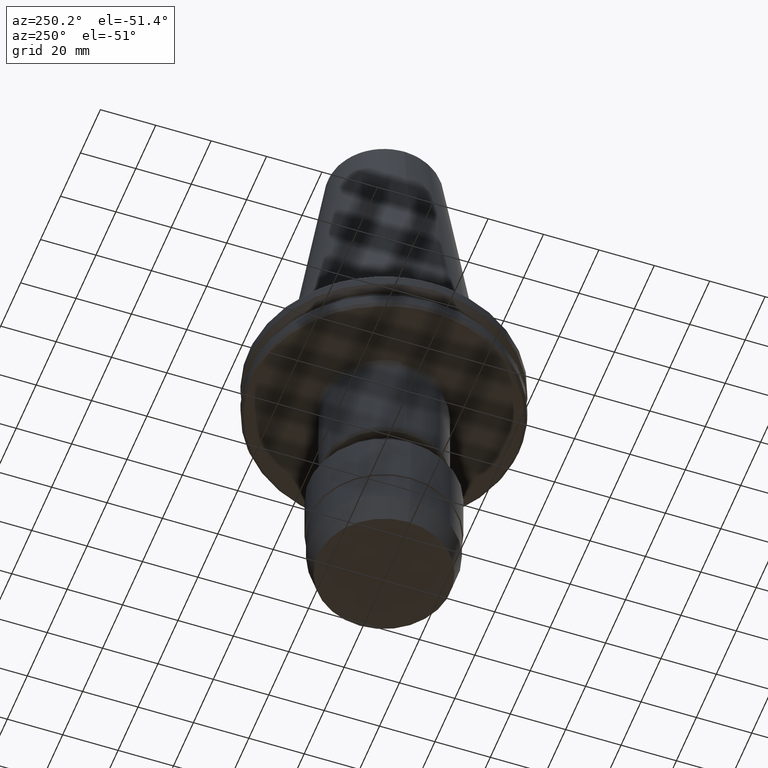
[diagram: clean part render]
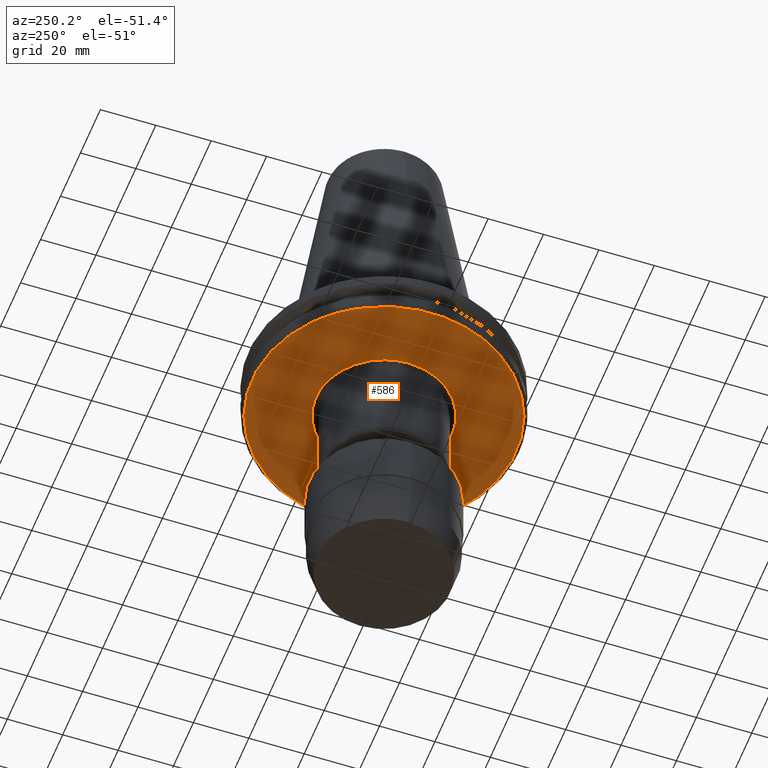
[diagram: same view with one face highlighted and labeled with its STEP entity id]
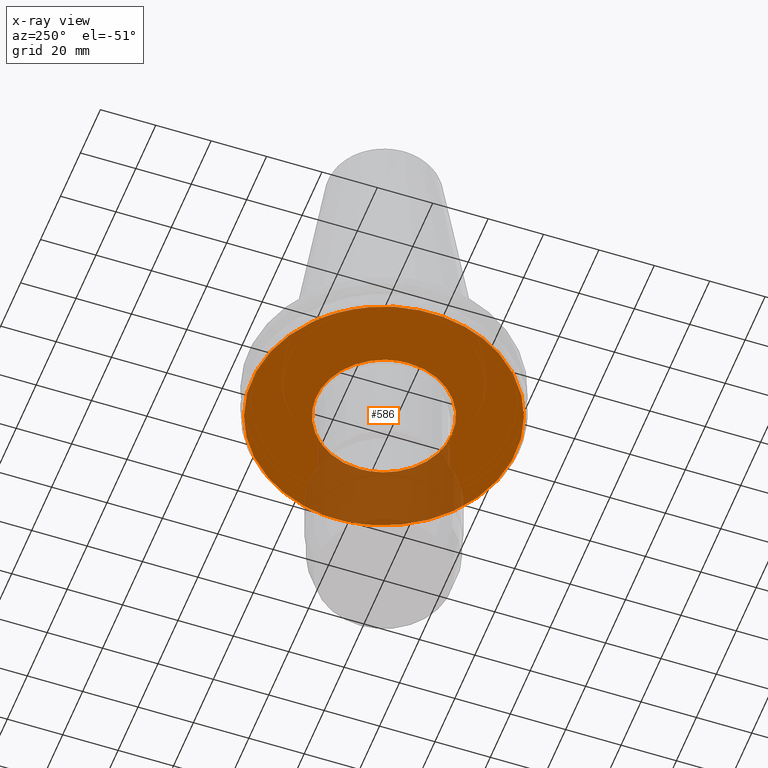
[diagram: x-ray of the same camera — body ghosted, the highlighted face saturated]
A machine part, auxiliary view. The second image highlights one B-rep face of the part: STEP entity #586.
The next image is the same camera in x-ray: the body ghosted, the highlighted face saturated — about 24% of this face is hidden behind the body in this view.
In plain terms, the highlighted planar face has unit normal (0, 0, -1).
Its self-contained STEP definition (entity closure, byte-faithful):
#8 = CARTESIAN_POINT ( 'NONE',  ( -6.266551039190169100, -47.17166706347747900, -19.10000000000000500 ) ) ;
#14 = ORIENTED_EDGE ( 'NONE', *, *, #1705, .F. ) ;
#19 = CARTESIAN_POINT ( 'NONE',  ( -14.69055632917383400, -45.25992943446075900, -19.10000000000000500 ) ) ;
#23 = EDGE_CURVE ( 'NONE', #1183, #809, #1015, .T. ) ;
#34 = CARTESIAN_POINT ( 'NONE',  ( -33.04293178105575600, -34.25236535246320800, -19.10000000000000500 ) ) ;
#45 = CARTESIAN_POINT ( 'NONE',  ( -39.52121115034933800, -26.50183329894741700, -19.10000000000000500 ) ) ;
#203 = DIRECTION ( 'NONE',  ( -0.0000000000000000000, -0.0000000000000000000, 1.000000000000000000 ) ) ;
#213 = B_SPLINE_CURVE_WITH_KNOTS ( 'NONE', 3,
 ( #2980, #2968, #3022, #3030, #3036, #3063, #3073, #3082, #3067, #3090, #3108, #2348, #3112, #3117, #3122, #3137, #2369, #3141, #3143, #3147, #3165, #2385, #3169, #3174, #2440, #2461, #3185, #3195, #2406, #3200, #3204, #3205, #3213, #2453, #3215, #3220, #3228, #3234, #3246, #3258, #2355, #3276, #3308, #3317, #2366, #3345, #3360, #3369, #2382, #3377, #3383, #3384, #3398, #3407, #3412, #2404, #3445, #3454, #3460, #2449, #3483, #3493, #2474, #2481, #3502, #3332, #3328, #3271, #3180, #2507, #3505, #3499, #3451, #3421, #3403, #3372, #3352, #3263, #3242, #3222, #3209, #3193, #3439, #3287, #3496, #3488, #3477, #3233, #3097, #3160, #3390, #3033, #3480, #3085, #3078, #3039, #3054, #3027, #3004, #3018, #2990, #2984, #2979, #2962, #2953, #2931, #2925, #2910 ),
 .UNSPECIFIED., .F., .F.,
 ( 4, 1, 1, 1, 1, 1, 2, 2, 1, 1, 1, 1, 2, 2, 1, 1, 1, 2, 2, 2, 1, 1, 1, 1, 2, 2, 1, 1, 1, 1, 2, 2, 1, 1, 1, 1, 1, 2, 2, 2, 1, 1, 1, 1, 1, 2, 2, 1, 1, 1, 1, 2, 2, 1, 1, 1, 2, 2, 2, 1, 1, 1, 1, 2, 2, 1, 1, 1, 1, 2, 2, 1, 1, 1, 1, 1, 2, 2, 4 ),
 ( 0.0000000000000000000, 0.03125000000000047900, 0.04687500000000072900, 0.05468750000000084000, 0.05859375000000087400, 0.06054687500000090900, 0.06152343750000094400, 0.06250000000000097100, 0.09375000000000118000, 0.1093750000000013200, 0.1171875000000013600, 0.1210937500000013900, 0.1230468750000013600, 0.1250000000000013300, 0.1562500000000013600, 0.1718750000000013600, 0.1796875000000013600, 0.1835937500000013900, 0.1875000000000014200, 0.2500000000000020500, 0.2812500000000024400, 0.2968750000000025500, 0.3046875000000025500, 0.3085937500000025500, 0.3105468750000026600, 0.3125000000000027200, 0.3437500000000046100, 0.3593750000000055000, 0.3671875000000058800, 0.3710937500000060500, 0.3730468750000061100, 0.3750000000000061600, 0.4062500000000062200, 0.4218750000000062200, 0.4296875000000062700, 0.4335937500000062200, 0.4355468750000062200, 0.4365234375000061600, 0.4375000000000061600, 0.5000000000000051100, 0.5312500000000045500, 0.5468750000000043300, 0.5546875000000043300, 0.5585937500000042200, 0.5605468750000041100, 0.5615234375000041100, 0.5625000000000042200, 0.5937500000000037700, 0.6093750000000036600, 0.6171875000000036600, 0.6210937500000036600, 0.6230468750000036600, 0.6250000000000036600, 0.6562500000000035500, 0.6718750000000034400, 0.6796875000000033300, 0.6835937500000032200, 0.6875000000000032200, 0.7500000000000013300, 0.7812500000000005600, 0.7968750000000001100, 0.8046874999999998900, 0.8085937499999998900, 0.8105468749999997800, 0.8124999999999996700, 0.8437500000000004400, 0.8593750000000008900, 0.8671875000000011100, 0.8710937500000011100, 0.8730468750000011100, 0.8750000000000012200, 0.9062500000000006700, 0.9218750000000003300, 0.9296875000000002200, 0.9335937500000002200, 0.9355468750000002200, 0.9365234375000002200, 0.9375000000000002200, 1.000000000000000000 ),
 .UNSPECIFIED. ) ;
#247 = CARTESIAN_POINT ( 'NONE',  ( 43.32195833354377600, -19.68441884222573200, -19.10000000000000100 ) ) ;
#258 = CARTESIAN_POINT ( 'NONE',  ( 35.45219036235576500, -31.74276426336269800, -19.10000000000000500 ) ) ;
#272 = CARTESIAN_POINT ( 'NONE',  ( 22.16184123277559300, -42.10851106048075800, -19.10000000000000100 ) ) ;
#287 = CARTESIAN_POINT ( 'NONE',  ( 8.433288832968015600, -46.83300009518482900, -19.10000000000000900 ) ) ;
#297 = EDGE_CURVE ( 'NONE', #2666, #1969, #2833, .T. ) ;
#298 = CARTESIAN_POINT ( 'NONE',  ( -7.064305541282756500, -47.05712494446967000, -19.10000000000000900 ) ) ;
#312 = CARTESIAN_POINT ( 'NONE',  ( -17.86104397993747000, -44.13944229614414600, -19.10000000000000900 ) ) ;
#328 = CARTESIAN_POINT ( 'NONE',  ( -34.27205937641024000, -33.01125269224346700, -19.10000000000000900 ) ) ;
#343 = CARTESIAN_POINT ( 'NONE',  ( -41.27447217703552700, -23.73945825332456400, -19.10000000000000500 ) ) ;
#370 = AXIS2_PLACEMENT_3D ( 'NONE', #2344, #2277, #2273 ) ;
#438 = CARTESIAN_POINT ( 'NONE',  ( 8.925911138566839000, -22.81623427014785900, -19.10000000000000900 ) ) ;
#477 = VERTEX_POINT ( 'NONE', #1531 ) ;
#528 = CARTESIAN_POINT ( 'NONE',  ( 42.75923279349206800, -20.91773531037193100, -19.10000000000000500 ) ) ;
#537 = CARTESIAN_POINT ( 'NONE',  ( 34.89789368789844600, -32.34827798778995600, -19.10000000000000500 ) ) ;
#545 = DIRECTION ( 'NONE',  ( 1.000000000000000000, 0.0000000000000000000, 0.0000000000000000000 ) ) ;
#548 = CARTESIAN_POINT ( 'NONE',  ( 20.84887959193407200, -42.79392924822949600, -19.10000000000000500 ) ) ;
#566 = CARTESIAN_POINT ( 'NONE',  ( 7.606337559600862400, -46.97256599227935000, -19.10000000000000100 ) ) ;
#575 = CARTESIAN_POINT ( 'NONE',  ( -7.254117645265833600, -47.02814260652999000, -19.10000000000000100 ) ) ;
#585 = CARTESIAN_POINT ( 'NONE',  ( -20.98967348492718400, -42.70707776895816500, -19.10000000000000500 ) ) ;
#586 = ADVANCED_FACE ( 'NONE', ( #1708, #1754 ), #1608, .T. ) ;
#601 = CARTESIAN_POINT ( 'NONE',  ( -34.55932176383649300, -32.70974151198348100, -19.10000000000000900 ) ) ;
#610 = CARTESIAN_POINT ( 'NONE',  ( -42.81563655120786600, -20.76707791606395000, -19.10000000000000100 ) ) ;
#640 = CARTESIAN_POINT ( 'NONE',  ( -36.93605622581492300, 30.00005778855020800, -19.09999999474892700 ) ) ;
#643 = CARTESIAN_POINT ( 'NONE',  ( -45.81650991385429000, 12.85002475276233700, -19.09999999474892700 ) ) ;
#771 = EDGE_LOOP ( 'NONE', ( #2390, #1443, #2645, #884, #785, #14, #1353 ) ) ;
#778 = CARTESIAN_POINT ( 'NONE',  ( -36.93605622581492300, 30.00005778855020800, -19.09999999474892700 ) ) ;
#784 = CARTESIAN_POINT ( 'NONE',  ( -38.98676025535058200, 27.47508662005105500, -19.10000000000000500 ) ) ;
#785 = ORIENTED_EDGE ( 'NONE', *, *, #2885, .F. ) ;
#791 = CARTESIAN_POINT ( 'NONE',  ( -40.75990645542658800, 24.76850955879668000, -19.10000000000000500 ) ) ;
#793 = CARTESIAN_POINT ( 'NONE',  ( 40.76988109013156200, -24.55223597831507100, -19.10000000000000500 ) ) ;
#796 = CARTESIAN_POINT ( 'NONE',  ( -43.75094089819072700, 18.99202807367705100, -19.10000000000000500 ) ) ;
#798 = CARTESIAN_POINT ( 'NONE',  ( -30.00005778855020500, 36.93605622581492300, -19.09999999474892700 ) ) ;
#805 = CARTESIAN_POINT ( 'NONE',  ( 34.73067266395412400, -32.52774543433427100, -19.10000000000000900 ) ) ;
#809 = VERTEX_POINT ( 'NONE', #2096 ) ;
#819 = CARTESIAN_POINT ( 'NONE',  ( 16.93742074003274600, -44.47652521782406900, -19.10000000000000900 ) ) ;
#828 = CARTESIAN_POINT ( 'NONE',  ( 7.409008762633228600, -47.00399060518157100, -19.09999999999999800 ) ) ;
#831 = CARTESIAN_POINT ( 'NONE',  ( -45.81650991385429000, 12.85002475276233700, -19.09999999474892700 ) ) ;
#835 = VERTEX_POINT ( 'NONE', #3249 ) ;
#836 = CARTESIAN_POINT ( 'NONE',  ( -44.93810529641454800, 15.98161967227325800, -19.10000000000000100 ) ) ;
#844 = CARTESIAN_POINT ( 'NONE',  ( -8.593580539630471200, -46.81937647076279100, -19.10000000000000900 ) ) ;
#850 = CARTESIAN_POINT ( 'NONE',  ( 45.81650991385429000, 12.85002475276234600, -19.09999999474892700 ) ) ;
#852 = CARTESIAN_POINT ( 'NONE',  ( 45.30006797984477600, 14.69104886070644700, -19.10000000000000500 ) ) ;
#856 = CARTESIAN_POINT ( 'NONE',  ( 44.67508573890287200, 16.49425599764650100, -19.10000000000000500 ) ) ;
#858 = CARTESIAN_POINT ( 'NONE',  ( -21.72237678637516100, -42.33689194281741700, -19.10000000000000100 ) ) ;
#859 = CARTESIAN_POINT ( 'NONE',  ( 43.91854959793744200, 18.31478907998181800, -19.10000000000000100 ) ) ;
#862 = CARTESIAN_POINT ( 'NONE',  ( 43.89443439609017600, 18.37251416061661800, -19.10000000000000100 ) ) ;
#864 = CARTESIAN_POINT ( 'NONE',  ( 43.84707740126011500, 18.48525077571082100, -19.10000000000000500 ) ) ;
#867 = CARTESIAN_POINT ( 'NONE',  ( 43.77572545363726400, 18.65419956364984300, -19.10000000000000100 ) ) ;
#868 = CARTESIAN_POINT ( 'NONE',  ( -35.57383602576561500, -31.63065524384345300, -19.10000000000000500 ) ) ;
#872 = CARTESIAN_POINT ( 'NONE',  ( 43.60702238820626100, 19.04732045925824500, -19.10000000000000500 ) ) ;
#873 = CARTESIAN_POINT ( 'NONE',  ( 43.26075550676694800, 19.82919047881128400, -19.10000000000000500 ) ) ;
#876 = CARTESIAN_POINT ( 'NONE',  ( 42.53277874157888800, 21.37544343126220500, -19.10000000000000900 ) ) ;
#882 = CARTESIAN_POINT ( 'NONE',  ( -43.17333286364246400, -20.00853958726410300, -19.10000000000000100 ) ) ;
#884 = ORIENTED_EDGE ( 'NONE', *, *, #1075, .T. ) ;
#885 = CARTESIAN_POINT ( 'NONE',  ( 41.84803922460157100, 22.67082524195410900, -19.10000000000000100 ) ) ;
#888 = DIRECTION ( 'NONE',  ( -0.0000000000000000000, -0.0000000000000000000, 1.000000000000000000 ) ) ;
#892 = CARTESIAN_POINT ( 'NONE',  ( 41.30410487060340300, 23.62737266855432600, -19.10000000000000500 ) ) ;
#895 = CARTESIAN_POINT ( 'NONE',  ( 41.24130619434603800, 23.73682857431735700, -19.10000000000000900 ) ) ;
#899 = CARTESIAN_POINT ( 'NONE',  ( 41.11685396623421000, 23.95176649573039300, -19.10000000000000900 ) ) ;
#903 = CARTESIAN_POINT ( 'NONE',  ( 40.92895922265621100, 24.27337234609990800, -19.10000000000000500 ) ) ;
#905 = CARTESIAN_POINT ( 'NONE',  ( 40.48202334443599400, 25.01817877471203400, -19.10000000000000500 ) ) ;
#909 = CARTESIAN_POINT ( 'NONE',  ( 39.55409234850913700, 26.48536274293576300, -19.10000000000000100 ) ) ;
#916 = CARTESIAN_POINT ( 'NONE',  ( 38.70033565573794500, 27.70449947741241200, -19.10000000000000100 ) ) ;
#927 = CARTESIAN_POINT ( 'NONE',  ( 37.95643437415584000, 28.69908590947580500, -19.10000000000000500 ) ) ;
#929 = CARTESIAN_POINT ( 'NONE',  ( 37.80367910322554800, 28.90003077334454300, -19.10000000000000900 ) ) ;
#934 = CARTESIAN_POINT ( 'NONE',  ( 37.49764701077705800, 29.29604387573100900, -19.10000000000000500 ) ) ;
#937 = CARTESIAN_POINT ( 'NONE',  ( 37.03410230690259700, 29.88621448141576700, -19.10000000000000500 ) ) ;
#944 = CARTESIAN_POINT ( 'NONE',  ( 35.92102204145000900, 31.23633589274896800, -19.10000000000000500 ) ) ;
#948 = CARTESIAN_POINT ( 'NONE',  ( 34.91299446006971900, 32.34739424200956400, -19.10000000000000500 ) ) ;
#950 = CARTESIAN_POINT ( 'NONE',  ( 32.82499425408121100, 34.50792617421171100, -19.10000000000000500 ) ) ;
#952 = CARTESIAN_POINT ( 'NONE',  ( 31.34720755508379900, 35.85573751084054800, -19.10000000000000500 ) ) ;
#958 = CARTESIAN_POINT ( 'NONE',  ( 29.58979462928633500, 37.26625125388741100, -19.10000000000000100 ) ) ;
#961 = CARTESIAN_POINT ( 'NONE',  ( 29.39637043276513900, 37.41901030422590700, -19.10000000000000900 ) ) ;
#962 = CARTESIAN_POINT ( 'NONE',  ( 29.00433579293829600, 37.72372139860291900, -19.10000000000000500 ) ) ;
#969 = CARTESIAN_POINT ( 'NONE',  ( 28.41294149275874800, 38.17601633497948700, -19.09999999999999800 ) ) ;
#973 = CARTESIAN_POINT ( 'NONE',  ( 27.00962507593165500, 39.19796925020254000, -19.10000000000000900 ) ) ;
#982 = CARTESIAN_POINT ( 'NONE',  ( 25.76667434766581300, 40.01666842955532400, -19.10000000000000500 ) ) ;
#986 = CARTESIAN_POINT ( 'NONE',  ( 24.81440725883085800, 40.60206258293646200, -19.10000000000000500 ) ) ;
#987 = CARTESIAN_POINT ( 'NONE',  ( 24.71160396700230100, 40.66470845362184100, -19.10000000000000100 ) ) ;
#995 = CARTESIAN_POINT ( 'NONE',  ( 24.50233304969292900, 40.79115049132191500, -19.10000000000000500 ) ) ;
#997 = CARTESIAN_POINT ( 'NONE',  ( 24.18776650256299000, 40.97956592006652000, -19.10000000000000500 ) ) ;
#998 = CARTESIAN_POINT ( 'NONE',  ( 23.44915669443227200, 41.41046852583234300, -19.10000000000000500 ) ) ;
#1004 = CARTESIAN_POINT ( 'NONE',  ( 21.95345228552716700, 42.23734015881094500, -19.10000000000000500 ) ) ;
#1007 = CARTESIAN_POINT ( 'NONE',  ( 20.63973171907657900, 42.88620113813023900, -19.10000000000000900 ) ) ;
#1010 = CARTESIAN_POINT ( 'NONE',  ( 19.69421577141492800, 43.31753143489083200, -19.10000000000000500 ) ) ;
#1015 = CIRCLE ( 'NONE', #2077, 47.58440623600250100 ) ;
#1018 = CARTESIAN_POINT ( 'NONE',  ( 19.64105775858945100, 43.34165811582305100, -19.10000000000000900 ) ) ;
#1029 = CARTESIAN_POINT ( 'NONE',  ( 19.53216097461157500, 43.39084235519819500, -19.10000000000000100 ) ) ;
#1032 = CARTESIAN_POINT ( 'NONE',  ( 19.36869561264892800, 43.46430390230612800, -19.10000000000000100 ) ) ;
#1045 = CARTESIAN_POINT ( 'NONE',  ( 18.98643513276526600, 43.63351049520797900, -19.10000000000000500 ) ) ;
#1051 = CARTESIAN_POINT ( 'NONE',  ( 18.21854896511472800, 43.96310894627836800, -19.10000000000000900 ) ) ;
#1056 = CARTESIAN_POINT ( 'NONE',  ( 16.66931579828063500, 44.58704690948568600, -19.10000000000000500 ) ) ;
#1060 = CARTESIAN_POINT ( 'NONE',  ( 15.31832594408059100, 45.06140698263472900, -19.10000000000001200 ) ) ;
#1063 = CARTESIAN_POINT ( 'NONE',  ( 12.58557862074794000, 45.92953526851350400, -19.10000000000000500 ) ) ;
#1064 = CARTESIAN_POINT ( 'NONE',  ( 45.48455499196277400, -14.03326405621700300, -19.09999999999999400 ) ) ;
#1067 = CARTESIAN_POINT ( 'NONE',  ( 10.73456591713719300, 46.39711397970397400, -19.10000000000000500 ) ) ;
#1070 = CARTESIAN_POINT ( 'NONE',  ( 8.797719920410600000, 46.76398851016824700, -19.10000000000000500 ) ) ;
#1071 = CARTESIAN_POINT ( 'NONE',  ( 8.736225942364694000, 46.77551714111499600, -19.10000000000000900 ) ) ;
#1075 = EDGE_CURVE ( 'NONE', #2573, #477, #1639, .T. ) ;
#1076 = CARTESIAN_POINT ( 'NONE',  ( 8.615996470641381000, 46.79781295841750900, -19.10000000000000500 ) ) ;
#1078 = CARTESIAN_POINT ( 'NONE',  ( 39.87405336317790000, -25.96868526588640700, -19.10000000000000500 ) ) ;
#1081 = CARTESIAN_POINT ( 'NONE',  ( 8.435609072310132500, 46.83090646071303100, -19.09999999999999800 ) ) ;
#1083 = CARTESIAN_POINT ( 'NONE',  ( 8.014402807646559900, 46.90567306712805600, -19.10000000000000500 ) ) ;
#1087 = CARTESIAN_POINT ( 'NONE',  ( 7.170780937423438100, 47.04540001752668800, -19.10000000000000900 ) ) ;
#1093 = CARTESIAN_POINT ( 'NONE',  ( 5.478699833393303500, 47.28562886859818800, -19.10000000000000100 ) ) ;
#1094 = CARTESIAN_POINT ( 'NONE',  ( 30.87175777942524800, -36.30849107487021900, -19.10000000000000500 ) ) ;
#1098 = CARTESIAN_POINT ( 'NONE',  ( 4.020051978080799900, 47.42429636998678400, -19.10000000000000900 ) ) ;
#1100 = CARTESIAN_POINT ( 'NONE',  ( 2.921919774953071900, 47.49467552483471900, -19.09999999999999800 ) ) ;
#1103 = CARTESIAN_POINT ( 'NONE',  ( 2.795956690231360800, 47.50226303628877400, -19.10000000000000100 ) ) ;
#1109 = CARTESIAN_POINT ( 'NONE',  ( 15.31431248954055500, -45.05316046877543100, -19.10000000000000500 ) ) ;
#1111 = EDGE_CURVE ( 'NONE', #1183, #1145, #3440, .T. ) ;
#1115 = CARTESIAN_POINT ( 'NONE',  ( 2.547980808395235600, 47.51621399213986100, -19.10000000000000100 ) ) ;
#1119 = CARTESIAN_POINT ( 'NONE',  ( 2.176018877763047600, 47.53568396421928100, -19.10000000000000900 ) ) ;
#1121 = CARTESIAN_POINT ( 'NONE',  ( 1.308120951141947600, 47.57091866719089500, -19.10000000000000900 ) ) ;
#1122 = CARTESIAN_POINT ( 'NONE',  ( 4.901693833011007600, -47.39496812887868100, -19.10000000000001200 ) ) ;
#1124 = CARTESIAN_POINT ( 'NONE',  ( -0.4276219226842210000, 47.60060714561257100, -19.10000000000000500 ) ) ;
#1125 = CARTESIAN_POINT ( 'NONE',  ( -1.915310706964912900, 47.55614425136573000, -19.10000000000000900 ) ) ;
#1129 = CARTESIAN_POINT ( 'NONE',  ( -3.155000903945456500, 47.48025286090142300, -19.10000000000000900 ) ) ;
#1135 = CARTESIAN_POINT ( 'NONE',  ( -3.406815653544069900, 47.46286484761140700, -19.10000000000000900 ) ) ;
#1136 = CARTESIAN_POINT ( 'NONE',  ( -12.63026754929555700, -45.88542074854634500, -19.10000000000000100 ) ) ;
#1140 = CARTESIAN_POINT ( 'NONE',  ( -3.905819226031873400, 47.42442718986811200, -19.10000000000000500 ) ) ;
#1141 = CARTESIAN_POINT ( 'NONE',  ( -4.653575368256655400, 47.36089933689269300, -19.10000000000000500 ) ) ;
#1143 = CARTESIAN_POINT ( 'NONE',  ( -6.393095184566051100, 47.17156811542699300, -19.10000000000000900 ) ) ;
#1145 = VERTEX_POINT ( 'NONE', #640 ) ;
#1146 = CARTESIAN_POINT ( 'NONE',  ( -7.875121571891069600, 46.93882781498823000, -19.10000000000000100 ) ) ;
#1148 = CARTESIAN_POINT ( 'NONE',  ( -21.94033403670223900, -42.22434829679991700, -19.10000000000000100 ) ) ;
#1149 = CARTESIAN_POINT ( 'NONE',  ( -10.82718688243038800, 46.37940535234366000, -19.10000000000000500 ) ) ;
#1152 = CARTESIAN_POINT ( 'NONE',  ( -12.76496267438223200, 45.88395211695184600, -19.09999999999999800 ) ) ;
#1157 = CARTESIAN_POINT ( 'NONE',  ( -14.90863721726842800, 45.18917973414403400, -19.10000000000000500 ) ) ;
#1159 = CARTESIAN_POINT ( 'NONE',  ( -15.14249711230291600, 45.11134788466759500, -19.09999999999999800 ) ) ;
#1163 = CARTESIAN_POINT ( 'NONE',  ( -15.61238905962479400, 44.95090609541712500, -19.10000000000000500 ) ) ;
#1164 = CARTESIAN_POINT ( 'NONE',  ( -38.25019637277250700, -28.31889818160393400, -19.10000000000000900 ) ) ;
#1167 = CARTESIAN_POINT ( 'NONE',  ( -16.31507297257428800, 44.70483040319042100, -19.10000000000000100 ) ) ;
#1171 = CARTESIAN_POINT ( 'NONE',  ( -17.93959071322330000, 44.09276272953813700, -19.10000000000000500 ) ) ;
#1176 = CARTESIAN_POINT ( 'NONE',  ( -43.25687800644276100, -19.82702823906426200, -19.10000000000001200 ) ) ;
#1179 = CARTESIAN_POINT ( 'NONE',  ( -19.30618639452273300, 43.50317719476752400, -19.10000000000000100 ) ) ;
#1181 = CARTESIAN_POINT ( 'NONE',  ( -20.31820910729746600, 43.02850999358383200, -19.10000000000000500 ) ) ;
#1183 = VERTEX_POINT ( 'NONE', #643 ) ;
#1186 = CARTESIAN_POINT ( 'NONE',  ( -20.42700269620342000, 42.97696412136785700, -19.09999999999999800 ) ) ;
#1191 = CARTESIAN_POINT ( 'NONE',  ( -20.64756274229976500, 42.87144079788518500, -19.10000000000000500 ) ) ;
#1197 = CARTESIAN_POINT ( 'NONE',  ( -20.97772230054858200, 42.71191916152597700, -19.10000000000000100 ) ) ;
#1199 = CARTESIAN_POINT ( 'NONE',  ( -21.74333102685920200, 42.33104545207474700, -19.10000000000000100 ) ) ;
#1203 = CARTESIAN_POINT ( 'NONE',  ( -23.25549417440079800, 41.53467180138673600, -19.10000000000000500 ) ) ;
#1210 = CARTESIAN_POINT ( 'NONE',  ( -24.51896949215701900, 40.79270656059319600, -19.10000000000000100 ) ) ;
#1212 = CARTESIAN_POINT ( 'NONE',  ( -25.39850626193174300, 40.23911708929993100, -19.10000000000000100 ) ) ;
#1217 = CARTESIAN_POINT ( 'NONE',  ( -25.44784265904079100, 40.20793179859312300, -19.09999999999999400 ) ) ;
#1219 = CARTESIAN_POINT ( 'NONE',  ( -25.54871977331017500, 40.14390888365007000, -19.10000000000000500 ) ) ;
#1224 = CARTESIAN_POINT ( 'NONE',  ( -25.69983870482903400, 40.04760097354591900, -19.10000000000000900 ) ) ;
#1231 = CARTESIAN_POINT ( 'NONE',  ( -26.05107236584310100, 39.82096775280908200, -19.10000000000000500 ) ) ;
#1236 = CARTESIAN_POINT ( 'NONE',  ( -26.74803097108493000, 39.36004225602716400, -19.10000000000000500 ) ) ;
#1240 = CARTESIAN_POINT ( 'NONE',  ( -28.11991331442331800, 38.40755504123007600, -19.10000000000000500 ) ) ;
#1251 = CARTESIAN_POINT ( 'NONE',  ( -30.00005778855020500, 36.93605622581492300, -19.09999999474892700 ) ) ;
#1256 = ORIENTED_EDGE ( 'NONE', *, *, #1768, .T. ) ;
#1265 = CARTESIAN_POINT ( 'NONE',  ( -29.25803840789287200, 37.53861819214704800, -19.09999999999999800 ) ) ;
#1353 = ORIENTED_EDGE ( 'NONE', *, *, #3216, .T. ) ;
#1370 = DIRECTION ( 'NONE',  ( 1.000000000000000000, 0.0000000000000000000, 0.0000000000000000000 ) ) ;
#1377 = CARTESIAN_POINT ( 'NONE',  ( 44.14400760328781800, -17.78327443843682300, -19.10000000000000500 ) ) ;
#1390 = EDGE_CURVE ( 'NONE', #2573, #1145, #2974, .T. ) ;
#1393 = CARTESIAN_POINT ( 'NONE',  ( 39.65426651491301200, -26.30232866222224800, -19.10000000000000500 ) ) ;
#1405 = CARTESIAN_POINT ( 'NONE',  ( 26.04667072494198600, -39.86182647868685800, -19.10000000000000500 ) ) ;
#1417 = CARTESIAN_POINT ( 'NONE',  ( 14.92480319435984100, -45.18322660194290600, -19.10000000000000900 ) ) ;
#1431 = CARTESIAN_POINT ( 'NONE',  ( -1.228836206619353000, -47.58432795148221600, -19.10000000000001200 ) ) ;
#1443 = ORIENTED_EDGE ( 'NONE', *, *, #1111, .T. ) ;
#1445 = CARTESIAN_POINT ( 'NONE',  ( -14.23600727233110800, -45.40538341419763000, -19.10000000000000500 ) ) ;
#1457 = CARTESIAN_POINT ( 'NONE',  ( -26.62270247519753100, -39.52978200592752200, -19.10000000000000500 ) ) ;
#1466 = CARTESIAN_POINT ( 'NONE',  ( -39.24372344673729200, -26.91181163147337000, -19.10000000000000100 ) ) ;
#1479 = CARTESIAN_POINT ( 'NONE',  ( -44.31049451720484500, -17.51829147052862700, -19.10000000000000500 ) ) ;
#1531 = CARTESIAN_POINT ( 'NONE',  ( 45.81650991385429000, 12.85002475276234600, -19.09999999474892700 ) ) ;
#1598 = CARTESIAN_POINT ( 'NONE',  ( 0.0000000000000000000, 1.392610934382537900E-015, -19.10000000000000500 ) ) ;
#1602 = CARTESIAN_POINT ( 'NONE',  ( 0.0000000000000000000, 0.0000000000000000000, -19.09999999474892700 ) ) ;
#1608 = PLANE ( 'NONE',  #2035 ) ;
#1618 = DIRECTION ( 'NONE',  ( 0.0000000000000000000, 0.0000000000000000000, -1.000000000000000000 ) ) ;
#1622 = DIRECTION ( 'NONE',  ( -1.000000000000000000, 0.0000000000000000000, -0.0000000000000000000 ) ) ;
#1639 = B_SPLINE_CURVE_WITH_KNOTS ( 'NONE', 3,
 ( #1251, #1265, #1240, #1236, #1231, #1224, #1219, #1217, #1212, #1210, #1203, #1199, #1197, #1191, #1186, #1181, #1179, #1171, #1167, #1163, #1159, #1157, #1152, #1149, #1146, #1143, #1141, #1140, #1135, #1129, #1125, #1124, #1121, #1119, #1115, #1103, #1100, #1098, #1093, #1087, #1083, #1081, #1076, #1071, #1070, #1067, #1063, #1060, #1056, #1051, #1045, #1032, #1029, #1018, #1010, #1007, #1004, #998, #997, #995, #987, #986, #982, #973, #969, #962, #961, #958, #952, #950, #948, #944, #937, #934, #929, #927, #916, #909, #905, #903, #899, #895, #892, #885, #876, #873, #872, #867, #864, #862, #859, #856, #852, #850 ),
 .UNSPECIFIED., .F., .F.,
 ( 4, 1, 1, 1, 1, 2, 2, 1, 1, 1, 2, 2, 1, 1, 2, 2, 2, 1, 1, 2, 2, 1, 1, 1, 2, 2, 1, 1, 1, 1, 2, 2, 2, 1, 1, 1, 1, 2, 2, 1, 1, 1, 2, 2, 1, 1, 2, 2, 2, 1, 1, 2, 2, 1, 1, 1, 2, 2, 1, 1, 1, 1, 2, 2, 4 ),
 ( 0.0000000000000000000, 0.03124999999999664900, 0.04687499999999486500, 0.05468749999999397000, 0.05859374999999363000, 0.06054687499999357500, 0.06249999999999351900, 0.09374999999999429600, 0.1093749999999947100, 0.1171874999999949100, 0.1210937499999949100, 0.1249999999999949200, 0.1562499999999948100, 0.1718749999999947500, 0.1796874999999947300, 0.1874999999999946700, 0.2499999999999945600, 0.2812499999999945000, 0.2968749999999944500, 0.3046874999999944500, 0.3124999999999944500, 0.3437499999999945000, 0.3593749999999945600, 0.3671874999999945600, 0.3710937499999945600, 0.3749999999999945600, 0.4062499999999947300, 0.4218749999999947800, 0.4296874999999947800, 0.4335937499999947300, 0.4355468749999947800, 0.4374999999999947800, 0.4999999999999950000, 0.5312499999999952300, 0.5468749999999952300, 0.5546874999999952300, 0.5585937499999952300, 0.5605468749999953400, 0.5624999999999953400, 0.5937499999999945600, 0.6093749999999941200, 0.6171874999999938900, 0.6210937499999937800, 0.6249999999999936700, 0.6562499999999931200, 0.6718749999999927800, 0.6796874999999926700, 0.6874999999999926700, 0.7499999999999925600, 0.7812499999999927800, 0.7968749999999927800, 0.8046874999999927800, 0.8124999999999926700, 0.8437499999999924500, 0.8593749999999923400, 0.8671874999999922300, 0.8710937499999923400, 0.8749999999999923400, 0.9062499999999934500, 0.9218749999999938900, 0.9296874999999942300, 0.9335937499999944500, 0.9355468749999945600, 0.9374999999999946700, 1.000000000000000000 ),
 .UNSPECIFIED. ) ;
#1655 = B_SPLINE_CURVE_WITH_KNOTS ( 'NONE', 3,
 ( #2667, #1064, #2938, #1377, #3219, #1669, #3476, #1923, #247, #2176, #528, #2432, #793, #2682, #1078, #2948, #1393, #3227, #1679, #3487, #1935, #258, #2187, #537, #2444, #805, #2697, #1094, #2959, #1405, #3239, #1686, #3498, #1942, #272, #2198, #548, #2452, #819, #2703, #1109, #2973, #1417, #3250, #1704, #3510, #1952, #287, #2206, #566, #2464, #828, #2715, #1122, #2983, #1431, #3262, #1716, #8, #1963, #298, #2220, #575, #2473, #844, #2729, #1136, #2995, #1445, #3275, #1725, #19, #1976, #312, #2233, #585, #2485, #858, #2738, #1148, #3008, #1457, #3286, #1737, #34, #1985, #328, #2241, #601, #2495, #868, #2747, #1164, #3017, #1466, #3298, #1752, #45, #1998, #343, #2254, #610, #2506, #882, #2758, #1176, #3029, #1479, #3307, #1767 ),
 .UNSPECIFIED., .F., .F.,
 ( 4, 1, 1, 1, 1, 1, 2, 2, 1, 1, 1, 1, 2, 2, 1, 1, 1, 1, 2, 2, 2, 1, 1, 1, 1, 2, 2, 1, 1, 1, 1, 2, 2, 1, 1, 1, 1, 1, 2, 2, 2, 1, 1, 1, 1, 1, 2, 2, 1, 1, 1, 1, 2, 2, 1, 1, 1, 1, 2, 2, 2, 1, 1, 1, 1, 2, 2, 1, 1, 1, 1, 2, 2, 1, 1, 1, 1, 1, 2, 2, 4 ),
 ( 0.0000000000000000000, 0.03124999999999841800, 0.04687499999999753700, 0.05468749999999713400, 0.05859374999999686400, 0.06054687499999676000, 0.06152343749999671100, 0.06249999999999666200, 0.09374999999999647500, 0.1093749999999963500, 0.1171874999999962400, 0.1210937499999962800, 0.1230468749999962700, 0.1249999999999962500, 0.1562499999999971700, 0.1718749999999976700, 0.1796874999999978600, 0.1835937499999979200, 0.1855468749999980000, 0.1874999999999980600, 0.2500000000000003900, 0.2812500000000015500, 0.2968750000000021100, 0.3046875000000023900, 0.3085937500000026100, 0.3105468750000026100, 0.3125000000000026100, 0.3437500000000033900, 0.3593750000000038300, 0.3671875000000040500, 0.3710937500000042200, 0.3730468750000042700, 0.3750000000000043300, 0.4062500000000054400, 0.4218750000000060500, 0.4296875000000063300, 0.4335937500000064900, 0.4355468750000065500, 0.4365234375000066100, 0.4375000000000066600, 0.5000000000000097700, 0.5312500000000113200, 0.5468750000000121000, 0.5546875000000124300, 0.5585937500000125500, 0.5605468750000126600, 0.5615234375000127700, 0.5625000000000127700, 0.5937500000000127700, 0.6093750000000127700, 0.6171875000000128800, 0.6210937500000128800, 0.6230468750000128800, 0.6250000000000128800, 0.6562500000000127700, 0.6718750000000126600, 0.6796875000000126600, 0.6835937500000125500, 0.6855468750000125500, 0.6875000000000125500, 0.7500000000000134300, 0.7812500000000138800, 0.7968750000000141000, 0.8046875000000141000, 0.8085937500000141000, 0.8105468750000139900, 0.8125000000000138800, 0.8437500000000123200, 0.8593750000000115500, 0.8671875000000112100, 0.8710937500000109900, 0.8730468750000108800, 0.8750000000000107700, 0.9062500000000098800, 0.9218750000000094400, 0.9296875000000091000, 0.9335937500000088800, 0.9355468750000087700, 0.9365234375000087700, 0.9375000000000086600, 1.000000000000000000 ),
 .UNSPECIFIED. ) ;
#1669 = CARTESIAN_POINT ( 'NONE',  ( 43.51090192562528400, -19.26422878765348700, -19.10000000000000900 ) ) ;
#1679 = CARTESIAN_POINT ( 'NONE',  ( 38.83538641208783600, -27.52832894059743300, -19.10000000000000500 ) ) ;
#1686 = CARTESIAN_POINT ( 'NONE',  ( 23.04197630937905200, -41.63572875460497600, -19.10000000000001200 ) ) ;
#1704 = CARTESIAN_POINT ( 'NONE',  ( 13.55299495753907900, -45.63134899766062300, -19.10000000000000900 ) ) ;
#1705 = EDGE_CURVE ( 'NONE', #1962, #835, #3192, .T. ) ;
#1708 = FACE_OUTER_BOUND ( 'NONE', #771, .T. ) ;
#1716 = CARTESIAN_POINT ( 'NONE',  ( -5.201506961608897600, -47.30626884292214400, -19.10000000000000500 ) ) ;
#1725 = CARTESIAN_POINT ( 'NONE',  ( -14.61660763804840400, -45.28386166225931900, -19.10000000000000100 ) ) ;
#1737 = CARTESIAN_POINT ( 'NONE',  ( -31.34702148197052200, -35.84352815055594000, -19.10000000000000100 ) ) ;
#1752 = CARTESIAN_POINT ( 'NONE',  ( -39.47414305756606700, -26.57189768201596900, -19.10000000000000900 ) ) ;
#1754 = FACE_BOUND ( 'NONE', #2240, .T. ) ;
#1767 = CARTESIAN_POINT ( 'NONE',  ( -45.81650991385436100, -12.85002475276211200, -19.09999999474892700 ) ) ;
#1768 = EDGE_CURVE ( 'NONE', #1969, #2666, #213, .T. ) ;
#1848 = CARTESIAN_POINT ( 'NONE',  ( 24.50000000000000000, 3.000384657911015500E-015, -19.10000000000000500 ) ) ;
#1878 = CARTESIAN_POINT ( 'NONE',  ( 20.09398675717235600, -14.02009449772375000, -19.10000000000000900 ) ) ;
#1879 = CARTESIAN_POINT ( 'NONE',  ( 14.82203099771790800, -19.58108093204846900, -19.10000000000000900 ) ) ;
#1881 = CARTESIAN_POINT ( 'NONE',  ( 16.12836169541939000, -18.51981802165964900, -19.10000000000000900 ) ) ;
#1923 = CARTESIAN_POINT ( 'NONE',  ( 43.35367392674997700, -19.61446926785483700, -19.10000000000000500 ) ) ;
#1935 = CARTESIAN_POINT ( 'NONE',  ( 36.21214877210108800, -30.88232116247053200, -19.10000000000000900 ) ) ;
#1942 = CARTESIAN_POINT ( 'NONE',  ( 22.30913507860050900, -42.03066486931251700, -19.10000000000000900 ) ) ;
#1952 = CARTESIAN_POINT ( 'NONE',  ( 9.531275137177058100, -46.62778514758635100, -19.10000000000000500 ) ) ;
#1962 = VERTEX_POINT ( 'NONE', #2018 ) ;
#1963 = CARTESIAN_POINT ( 'NONE',  ( -6.798485331641740200, -47.09660001122695400, -19.10000000000000500 ) ) ;
#1969 = VERTEX_POINT ( 'NONE', #1848 ) ;
#1976 = CARTESIAN_POINT ( 'NONE',  ( -16.01819460261142000, -44.82648295049219900, -19.10000000000001200 ) ) ;
#1981 = CARTESIAN_POINT ( 'NONE',  ( -16.72626519779690900, -17.92199336087481900, -19.10000000000000500 ) ) ;
#1985 = CARTESIAN_POINT ( 'NONE',  ( -33.86642685690728200, -33.42950363247387500, -19.10000000000000500 ) ) ;
#1987 = CIRCLE ( 'NONE', #370, 47.58440623600250100 ) ;
#1998 = CARTESIAN_POINT ( 'NONE',  ( -40.27606908763599600, -25.37207012671987600, -19.10000000000000100 ) ) ;
#2015 = CARTESIAN_POINT ( 'NONE',  ( 20.39001067732271400, -13.58309494028928200, -19.10000000000000100 ) ) ;
#2018 = CARTESIAN_POINT ( 'NONE',  ( 45.81650991385429000, -12.85002475276233900, -19.09999999474892700 ) ) ;
#2035 = AXIS2_PLACEMENT_3D ( 'NONE', #1598, #1618, #1622 ) ;
#2077 = AXIS2_PLACEMENT_3D ( 'NONE', #1602, #203, #545 ) ;
#2093 = CARTESIAN_POINT ( 'NONE',  ( 12.79596617756028600, -20.89476168683344800, -19.10000000000000500 ) ) ;
#2096 = CARTESIAN_POINT ( 'NONE',  ( -45.81650991385436100, -12.85002475276211200, -19.09999999474892700 ) ) ;
#2123 = CARTESIAN_POINT ( 'NONE',  ( -23.94644880572123900, -5.239225600070273700, -19.09999999999999800 ) ) ;
#2125 = CARTESIAN_POINT ( 'NONE',  ( -5.816286823105073700, -23.80554885162805000, -19.10000000000000500 ) ) ;
#2127 = CARTESIAN_POINT ( 'NONE',  ( -7.155728036140311900, -23.45545526423439100, -19.10000000000000900 ) ) ;
#2131 = CARTESIAN_POINT ( 'NONE',  ( -8.279712299634725900, -23.07223958713398900, -19.10000000000000500 ) ) ;
#2136 = CARTESIAN_POINT ( 'NONE',  ( -4.481113061345116200, -24.08672142406536000, -19.10000000000000500 ) ) ;
#2153 = CARTESIAN_POINT ( 'NONE',  ( 18.76818551298838100, -15.78819234416302700, -19.10000000000000100 ) ) ;
#2176 = CARTESIAN_POINT ( 'NONE',  ( 43.30670207663173000, -19.71796403964764400, -19.10000000000000500 ) ) ;
#2179 = CARTESIAN_POINT ( 'NONE',  ( 19.66681824929940300, -14.62150524202417400, -19.10000000000000500 ) ) ;
#2187 = CARTESIAN_POINT ( 'NONE',  ( 35.06522988161573600, -32.16745368915921700, -19.10000000000000500 ) ) ;
#2198 = CARTESIAN_POINT ( 'NONE',  ( 22.08702858398671500, -42.14779738270512200, -19.10000000000000500 ) ) ;
#2206 = CARTESIAN_POINT ( 'NONE',  ( 7.882317655028996000, -46.92741024692443100, -19.10000000000000500 ) ) ;
#2212 = CARTESIAN_POINT ( 'NONE',  ( -24.14876603715223200, -4.135554191131056700, -19.10000000000000900 ) ) ;
#2220 = CARTESIAN_POINT ( 'NONE',  ( -7.178197001860737300, -47.03979101429534600, -19.10000000000000100 ) ) ;
#2232 = CARTESIAN_POINT ( 'NONE',  ( 8.694455448601816600, -22.90576902361203800, -19.10000000000000500 ) ) ;
#2233 = CARTESIAN_POINT ( 'NONE',  ( -19.95597383139069700, -43.20644150488462300, -19.10000000000000900 ) ) ;
#2235 = CARTESIAN_POINT ( 'NONE',  ( -20.73005640588864300, -13.05857972663476500, -19.10000000000000500 ) ) ;
#2236 = CARTESIAN_POINT ( 'NONE',  ( -20.61909307389231600, -13.23305766389143300, -19.10000000000000500 ) ) ;
#2240 = EDGE_LOOP ( 'NONE', ( #2611, #1256 ) ) ;
#2241 = CARTESIAN_POINT ( 'NONE',  ( -34.44459152367807100, -32.83054084352277600, -19.10000000000000100 ) ) ;
#2242 = CARTESIAN_POINT ( 'NONE',  ( -24.50000000000000000, -0.7491812973851403900, -19.10000000000000500 ) ) ;
#2245 = CARTESIAN_POINT ( 'NONE',  ( -24.44887269077575800, -1.868329118436188800, -19.10000000000000500 ) ) ;
#2247 = CARTESIAN_POINT ( 'NONE',  ( 4.135518247066988500, -24.14877268788468400, -19.10000000000000100 ) ) ;
#2252 = CARTESIAN_POINT ( 'NONE',  ( -12.71382165861831100, -20.95936065421322400, -19.10000000000000500 ) ) ;
#2254 = CARTESIAN_POINT ( 'NONE',  ( -42.32153804860535500, -21.76885322456213200, -19.10000000000000500 ) ) ;
#2257 = CARTESIAN_POINT ( 'NONE',  ( -11.64566886242128500, -21.58326654512698900, -19.10000000000000900 ) ) ;
#2270 = CARTESIAN_POINT ( 'NONE',  ( -10.34886861755553900, -22.21394415823197500, -19.10000000000000900 ) ) ;
#2273 = DIRECTION ( 'NONE',  ( 1.000000000000000000, 0.0000000000000000000, 0.0000000000000000000 ) ) ;
#2274 = CARTESIAN_POINT ( 'NONE',  ( -9.064483389555336500, -22.76153673783552400, -19.10000000000000500 ) ) ;
#2277 = DIRECTION ( 'NONE',  ( -0.0000000000000000000, -0.0000000000000000000, 1.000000000000000000 ) ) ;
#2284 = CARTESIAN_POINT ( 'NONE',  ( -4.506926015181044900, -24.08190607817276100, -19.10000000000000900 ) ) ;
#2319 = CARTESIAN_POINT ( 'NONE',  ( 21.58326654514376100, -11.64566886237646400, -19.10000000000000100 ) ) ;
#2325 = CARTESIAN_POINT ( 'NONE',  ( -4.799400683784328200, -24.02568531813802700, -19.10000000000000100 ) ) ;
#2337 = CARTESIAN_POINT ( 'NONE',  ( -9.687812999463702100, -22.50497981654417500, -19.10000000000000500 ) ) ;
#2344 = CARTESIAN_POINT ( 'NONE',  ( 0.0000000000000000000, 0.0000000000000000000, -19.09999999474892700 ) ) ;
#2348 = CARTESIAN_POINT ( 'NONE',  ( 23.67415324658605900, 6.395101912081398300, -19.10000000000000900 ) ) ;
#2355 = CARTESIAN_POINT ( 'NONE',  ( 9.210432622236565300, 22.70288077946254300, -19.10000000000000500 ) ) ;
#2365 = CARTESIAN_POINT ( 'NONE',  ( -4.555725855372842600, -24.07272238084342700, -19.10000000000000500 ) ) ;
#2366 = CARTESIAN_POINT ( 'NONE',  ( 7.155728036082752700, 23.45545526424294600, -19.10000000000000100 ) ) ;
#2369 = CARTESIAN_POINT ( 'NONE',  ( 22.81623427014715600, 8.925911138568819700, -19.10000000000000500 ) ) ;
#2382 = CARTESIAN_POINT ( 'NONE',  ( 4.628894224761888100, 24.05883858555447600, -19.10000000000000900 ) ) ;
#2385 = CARTESIAN_POINT ( 'NONE',  ( 20.89476168683554000, 12.79596617755392400, -19.10000000000000100 ) ) ;
#2390 = ORIENTED_EDGE ( 'NONE', *, *, #23, .F. ) ;
#2394 = CARTESIAN_POINT ( 'NONE',  ( -4.628894224768846900, -24.05883858555343800, -19.10000000000000500 ) ) ;
#2404 = CARTESIAN_POINT ( 'NONE',  ( -1.868175757081583600, 24.44890106723858000, -19.10000000000000500 ) ) ;
#2406 = CARTESIAN_POINT ( 'NONE',  ( 15.78819234416933200, 18.76818551298686100, -19.10000000000000900 ) ) ;
#2428 = AXIS2_PLACEMENT_3D ( 'NONE', #2865, #2856, #2531 ) ;
#2431 = CARTESIAN_POINT ( 'NONE',  ( 23.80554885162714700, -5.816286823109124700, -19.10000000000000500 ) ) ;
#2432 = CARTESIAN_POINT ( 'NONE',  ( 41.89551112235373900, -22.62542822165210800, -19.10000000000000500 ) ) ;
#2440 = CARTESIAN_POINT ( 'NONE',  ( 20.56422184315586300, 13.31817695545160200, -19.10000000000000900 ) ) ;
#2444 = CARTESIAN_POINT ( 'NONE',  ( 34.78600378371228900, -32.46856408570334900, -19.10000000000000900 ) ) ;
#2449 = CARTESIAN_POINT ( 'NONE',  ( -4.296848063485666300, 24.12034322201197200, -19.10000000000000500 ) ) ;
#2452 = CARTESIAN_POINT ( 'NONE',  ( 19.06919911911503400, -43.63110076014634600, -19.10000000000000100 ) ) ;
#2453 = CARTESIAN_POINT ( 'NONE',  ( 13.49502826333835900, 20.44839809984225500, -19.10000000000000900 ) ) ;
#2456 = CARTESIAN_POINT ( 'NONE',  ( 20.30203404603820900, -13.71487232726578000, -19.10000000000000100 ) ) ;
#2461 = CARTESIAN_POINT ( 'NONE',  ( 19.58108093207466300, 14.82203099768627300, -19.10000000000000100 ) ) ;
#2464 = CARTESIAN_POINT ( 'NONE',  ( 7.487954410176243400, -46.99147931232114000, -19.10000000000000100 ) ) ;
#2467 = CARTESIAN_POINT ( 'NONE',  ( 13.23305766389857900, -20.61909307388893400, -19.10000000000000100 ) ) ;
#2472 = CARTESIAN_POINT ( 'NONE',  ( 22.21394415824455500, -10.34886861752192600, -19.10000000000000500 ) ) ;
#2473 = CARTESIAN_POINT ( 'NONE',  ( -7.290541769874657500, -47.02251111249499600, -19.10000000000000500 ) ) ;
#2474 = CARTESIAN_POINT ( 'NONE',  ( -4.433684446097716500, 24.09549817372126100, -19.10000000000000500 ) ) ;
#2481 = CARTESIAN_POINT ( 'NONE',  ( -5.239225600092108700, 23.94644880572049700, -19.10000000000000900 ) ) ;
#2485 = CARTESIAN_POINT ( 'NONE',  ( -21.50308199364791100, -42.44918006592077100, -19.10000000000000900 ) ) ;
#2495 = CARTESIAN_POINT ( 'NONE',  ( -34.61735141641464300, -32.64831751860667500, -19.10000000000000500 ) ) ;
#2506 = CARTESIAN_POINT ( 'NONE',  ( -43.05532719421355400, -20.26207206328560100, -19.10000000000000100 ) ) ;
#2507 = CARTESIAN_POINT ( 'NONE',  ( -8.925911138570761200, 22.81623427014701700, -19.10000000000000100 ) ) ;
#2531 = DIRECTION ( 'NONE',  ( 1.000000000000000000, 0.0000000000000000000, 0.0000000000000000000 ) ) ;
#2533 = CARTESIAN_POINT ( 'NONE',  ( 13.31817695544961400, -20.56422184315748700, -19.10000000000000100 ) ) ;
#2539 = CARTESIAN_POINT ( 'NONE',  ( 20.95936065422280600, -12.71382165859270300, -19.10000000000000900 ) ) ;
#2552 = CARTESIAN_POINT ( 'NONE',  ( 4.433684446098707700, -24.09549817372103300, -19.10000000000000100 ) ) ;
#2573 = VERTEX_POINT ( 'NONE', #798 ) ;
#2582 = CARTESIAN_POINT ( 'NONE',  ( 24.50000000000000000, 3.000384657911015500E-015, -19.10000000000000500 ) ) ;
#2587 = CARTESIAN_POINT ( 'NONE',  ( -1.498187324667420900, -24.49996756976168700, -19.10000000000000900 ) ) ;
#2594 = CARTESIAN_POINT ( 'NONE',  ( 24.50000000000001100, -1.498718135192896200, -19.10000000000000900 ) ) ;
#2611 = ORIENTED_EDGE ( 'NONE', *, *, #297, .T. ) ;
#2612 = CARTESIAN_POINT ( 'NONE',  ( -24.50000000000000000, 0.0000000000000000000, -19.10000000000000500 ) ) ;
#2618 = CARTESIAN_POINT ( 'NONE',  ( -24.12033978579967600, -4.296866634587199300, -19.10000000000000500 ) ) ;
#2631 = CARTESIAN_POINT ( 'NONE',  ( 24.02568531813775400, -4.799400683785599100, -19.10000000000000900 ) ) ;
#2638 = CARTESIAN_POINT ( 'NONE',  ( 13.05857972664837900, -20.73005640588221300, -19.10000000000000500 ) ) ;
#2645 = ORIENTED_EDGE ( 'NONE', *, *, #1390, .F. ) ;
#2666 = VERTEX_POINT ( 'NONE', #2612 ) ;
#2667 = CARTESIAN_POINT ( 'NONE',  ( 45.81650991385429000, -12.85002475276233900, -19.09999999474892700 ) ) ;
#2682 = CARTESIAN_POINT ( 'NONE',  ( 40.17757738671358700, -25.49926469668890400, -19.10000000000000900 ) ) ;
#2686 = CARTESIAN_POINT ( 'NONE',  ( -9.114489498756123400, -22.74156407013688900, -19.10000000000000100 ) ) ;
#2697 = CARTESIAN_POINT ( 'NONE',  ( 32.84777691328536500, -34.53116215255221300, -19.10000000000000900 ) ) ;
#2703 = CARTESIAN_POINT ( 'NONE',  ( 15.85766042695990100, -44.86641853677324600, -19.10000000000000500 ) ) ;
#2715 = CARTESIAN_POINT ( 'NONE',  ( 7.367970511328267400, -47.01043969523493600, -19.10000000000000100 ) ) ;
#2729 = CARTESIAN_POINT ( 'NONE',  ( -10.47107321257774600, -46.44890181901310200, -19.10000000000000100 ) ) ;
#2738 = CARTESIAN_POINT ( 'NONE',  ( -21.86840944257202700, -42.26164196384021900, -19.10000000000000100 ) ) ;
#2742 = CARTESIAN_POINT ( 'NONE',  ( 22.74156407013805700, -9.114489498752972100, -19.10000000000000100 ) ) ;
#2747 = CARTESIAN_POINT ( 'NONE',  ( -36.86050155004882400, -30.14317060407181300, -19.10000000000000100 ) ) ;
#2758 = CARTESIAN_POINT ( 'NONE',  ( -43.22351251081048000, -19.89966219404797700, -19.10000000000000100 ) ) ;
#2765 = CARTESIAN_POINT ( 'NONE',  ( 22.76153673783556600, -9.064483389555137500, -19.10000000000000100 ) ) ;
#2792 = CARTESIAN_POINT ( 'NONE',  ( -19.58108093208029400, -14.82203099768609000, -19.10000000000000500 ) ) ;
#2799 = CARTESIAN_POINT ( 'NONE',  ( 23.45545526423317600, -7.155728036145718300, -19.10000000000001200 ) ) ;
#2820 = CARTESIAN_POINT ( 'NONE',  ( -24.20282251513410200, -3.812676422381370100, -19.10000000000000500 ) ) ;
#2833 = B_SPLINE_CURVE_WITH_KNOTS ( 'NONE', 3,
 ( #3120, #2242, #2245, #3501, #2820, #2212, #2618, #3490, #3132, #3322, #2123, #3150, #3162, #3232, #3173, #3127, #2887, #3302, #3237, #2889, #3077, #3198, #2235, #2236, #2897, #2792, #3172, #1981, #3171, #3167, #2999, #3245, #3037, #3035, #3158, #2252, #2257, #2270, #2337, #2855, #2987, #2686, #2274, #2131, #2127, #2125, #3304, #2325, #2394, #2365, #2284, #2136, #2859, #2587, #2917, #3087, #3140, #3089, #2247, #3070, #3062, #3102, #2552, #2957, #3314, #3125, #3402, #2232, #3492, #438, #3310, #3115, #3183, #3203, #2093, #2638, #2467, #2533, #1879, #1881, #2864, #2153, #2179, #1878, #2456, #2015, #3368, #3178, #2539, #2319, #2472, #2871, #3266, #3333, #2742, #2765, #3240, #2799, #2431, #2868, #2631, #3188, #3142, #3094, #3041, #2940, #2594, #2582 ),
 .UNSPECIFIED., .F., .F.,
 ( 4, 1, 1, 1, 1, 1, 2, 2, 1, 1, 1, 1, 2, 2, 1, 1, 1, 2, 2, 2, 1, 1, 1, 1, 2, 2, 1, 1, 1, 1, 2, 2, 1, 1, 1, 1, 1, 2, 2, 2, 1, 1, 1, 1, 1, 2, 2, 1, 1, 1, 1, 2, 2, 1, 1, 1, 2, 2, 2, 1, 1, 1, 1, 2, 2, 1, 1, 1, 1, 2, 2, 1, 1, 1, 1, 1, 2, 2, 4 ),
 ( 0.0000000000000000000, 0.03124999999999997200, 0.04687499999999995800, 0.05468749999999995800, 0.05859374999999994400, 0.06054687499999994400, 0.06152343749999994400, 0.06249999999999994400, 0.09374999999999977800, 0.1093749999999996900, 0.1171874999999996300, 0.1210937499999995700, 0.1230468749999995300, 0.1249999999999994900, 0.1562499999999985000, 0.1718749999999980300, 0.1796874999999977200, 0.1835937499999975900, 0.1874999999999974500, 0.2499999999999944200, 0.2812499999999929500, 0.2968749999999922300, 0.3046874999999919000, 0.3085937499999917800, 0.3105468749999917300, 0.3124999999999916700, 0.3437499999999910600, 0.3593749999999906700, 0.3671874999999905600, 0.3710937499999905100, 0.3730468749999904500, 0.3749999999999904000, 0.4062499999999897300, 0.4218749999999894000, 0.4296874999999892900, 0.4335937499999892300, 0.4355468749999892300, 0.4365234374999892300, 0.4374999999999892300, 0.4999999999999886800, 0.5312499999999884500, 0.5468749999999883400, 0.5546874999999882300, 0.5585937499999882300, 0.5605468749999882300, 0.5615234374999882300, 0.5624999999999882300, 0.5937499999999876800, 0.6093749999999874500, 0.6171874999999873400, 0.6210937499999872300, 0.6230468749999871200, 0.6249999999999870100, 0.6562499999999872300, 0.6718749999999873400, 0.6796874999999874500, 0.6835937499999874500, 0.6874999999999874500, 0.7499999999999887900, 0.7812499999999894500, 0.7968749999999897900, 0.8046874999999899000, 0.8085937499999900100, 0.8105468749999901200, 0.8124999999999902300, 0.8437499999999917800, 0.8593749999999926700, 0.8671874999999931200, 0.8710937499999933400, 0.8730468749999934500, 0.8749999999999935600, 0.9062499999999951200, 0.9218749999999958900, 0.9296874999999963400, 0.9335937499999965600, 0.9355468749999966700, 0.9365234374999966700, 0.9374999999999966700, 1.000000000000000000 ),
 .UNSPECIFIED. ) ;
#2855 = CARTESIAN_POINT ( 'NONE',  ( -9.354121316503045200, -22.64442185864022900, -19.10000000000000500 ) ) ;
#2856 = DIRECTION ( 'NONE',  ( -0.0000000000000000000, -0.0000000000000000000, 1.000000000000000000 ) ) ;
#2859 = CARTESIAN_POINT ( 'NONE',  ( -2.984925040253116000, -24.36362806321212600, -19.10000000000001200 ) ) ;
#2864 = CARTESIAN_POINT ( 'NONE',  ( 17.92199336089592500, -16.72626519777580600, -19.10000000000000500 ) ) ;
#2865 = CARTESIAN_POINT ( 'NONE',  ( 0.0000000000000000000, 0.0000000000000000000, -19.09999999474892700 ) ) ;
#2868 = CARTESIAN_POINT ( 'NONE',  ( 23.95634780301848800, -5.139534656850206500, -19.10000000000000500 ) ) ;
#2871 = CARTESIAN_POINT ( 'NONE',  ( 22.50497981655152200, -9.687812999444092900, -19.10000000000000500 ) ) ;
#2885 = EDGE_CURVE ( 'NONE', #835, #477, #1987, .T. ) ;
#2887 = CARTESIAN_POINT ( 'NONE',  ( -22.81623427014712000, -8.925911138568070100, -19.10000000000000900 ) ) ;
#2889 = CARTESIAN_POINT ( 'NONE',  ( -21.96245251862071900, -10.91373581646514300, -19.10000000000000100 ) ) ;
#2897 = CARTESIAN_POINT ( 'NONE',  ( -20.56422184315550800, -13.31817695545161200, -19.10000000000000500 ) ) ;
#2910 = CARTESIAN_POINT ( 'NONE',  ( -24.50000000000000000, 0.0000000000000000000, -19.10000000000000500 ) ) ;
#2917 = CARTESIAN_POINT ( 'NONE',  ( 0.7490936623337017800, -24.50001621511916000, -19.10000000000000500 ) ) ;
#2923 = CARTESIAN_POINT ( 'NONE',  ( 0.0000000000000000000, 0.0000000000000000000, -19.09999999474892700 ) ) ;
#2925 = CARTESIAN_POINT ( 'NONE',  ( -24.50000000000001100, 1.498718135177292700, -19.10000000000000500 ) ) ;
#2931 = CARTESIAN_POINT ( 'NONE',  ( -24.36366050873536100, 2.984749729876520400, -19.10000000000000900 ) ) ;
#2938 = CARTESIAN_POINT ( 'NONE',  ( 44.91986629715703600, -15.78375219148240100, -19.10000000000000900 ) ) ;
#2940 = CARTESIAN_POINT ( 'NONE',  ( 24.36366050873535700, -2.984749729892119500, -19.10000000000000900 ) ) ;
#2948 = CARTESIAN_POINT ( 'NONE',  ( 39.74239188769973200, -26.16898826911618800, -19.10000000000000500 ) ) ;
#2953 = CARTESIAN_POINT ( 'NONE',  ( -24.08672091710404900, 4.481115800569757100, -19.10000000000000900 ) ) ;
#2957 = CARTESIAN_POINT ( 'NONE',  ( 5.239225600060274600, -23.94644880572734600, -19.10000000000000100 ) ) ;
#2959 = CARTESIAN_POINT ( 'NONE',  ( 27.68499332084196100, -38.72449491407407900, -19.10000000000000900 ) ) ;
#2962 = CARTESIAN_POINT ( 'NONE',  ( -24.08190607817338600, 4.506926015178084600, -19.10000000000000500 ) ) ;
#2968 = CARTESIAN_POINT ( 'NONE',  ( 24.50000000000000000, 0.7491812973780060900, -19.10000000000000100 ) ) ;
#2973 = CARTESIAN_POINT ( 'NONE',  ( 15.08070599188592600, -45.13143456946083600, -19.10000000000000500 ) ) ;
#2974 = CIRCLE ( 'NONE', #3300, 47.58440623600250100 ) ;
#2979 = CARTESIAN_POINT ( 'NONE',  ( -24.07272238084468100, 4.555725855366995700, -19.10000000000000100 ) ) ;
#2980 = CARTESIAN_POINT ( 'NONE',  ( 24.50000000000000000, 3.000384657911015500E-015, -19.10000000000000500 ) ) ;
#2983 = CARTESIAN_POINT ( 'NONE',  ( 2.457672413238296500, -47.58428782218786800, -19.10000000000000500 ) ) ;
#2984 = CARTESIAN_POINT ( 'NONE',  ( -24.05883858555559500, 4.628894224758728800, -19.10000000000000500 ) ) ;
#2987 = CARTESIAN_POINT ( 'NONE',  ( -9.210432622252456600, -22.70288077945422600, -19.10000000000000100 ) ) ;
#2990 = CARTESIAN_POINT ( 'NONE',  ( -24.02568531814222300, 4.799400683764747400, -19.10000000000000500 ) ) ;
#2995 = CARTESIAN_POINT ( 'NONE',  ( -13.70206127222428600, -45.57086505245658300, -19.10000000000000500 ) ) ;
#2999 = CARTESIAN_POINT ( 'NONE',  ( -14.02009449773990600, -20.09398675715619500, -19.10000000000000100 ) ) ;
#3004 = CARTESIAN_POINT ( 'NONE',  ( -23.80554885164150400, 5.816286823042383400, -19.09999999999999800 ) ) ;
#3008 = CARTESIAN_POINT ( 'NONE',  ( -24.37778840664680400, -40.95242410592162900, -19.10000000000000900 ) ) ;
#3017 = CARTESIAN_POINT ( 'NONE',  ( -38.91719004523266500, -27.38454355135307200, -19.10000000000000900 ) ) ;
#3018 = CARTESIAN_POINT ( 'NONE',  ( -23.95634780302685800, 5.139534656811281200, -19.10000000000000500 ) ) ;
#3022 = CARTESIAN_POINT ( 'NONE',  ( 24.44887269077576200, 1.868329118423702800, -19.10000000000000900 ) ) ;
#3027 = CARTESIAN_POINT ( 'NONE',  ( -23.45545526425232900, 7.155728036056727200, -19.10000000000000900 ) ) ;
#3029 = CARTESIAN_POINT ( 'NONE',  ( -43.27416862306094500, -19.78925870223190500, -19.10000000000000100 ) ) ;
#3030 = CARTESIAN_POINT ( 'NONE',  ( 24.29975137220505100, 3.165909357523057500, -19.10000000000000100 ) ) ;
#3033 = CARTESIAN_POINT ( 'NONE',  ( -22.50497981656860300, 9.687812999419405100, -19.10000000000000100 ) ) ;
#3035 = CARTESIAN_POINT ( 'NONE',  ( -13.49502826334051900, -20.44839809983975700, -19.09999999999999800 ) ) ;
#3036 = CARTESIAN_POINT ( 'NONE',  ( 24.20282251513410900, 3.812676422375913100, -19.10000000000000900 ) ) ;
#3037 = CARTESIAN_POINT ( 'NONE',  ( -13.58309494029435900, -20.39001067731764400, -19.09999999999999800 ) ) ;
#3039 = CARTESIAN_POINT ( 'NONE',  ( -22.76153673783485900, 9.064483389558329700, -19.10000000000000500 ) ) ;
#3041 = CARTESIAN_POINT ( 'NONE',  ( 24.08672091710404900, -4.481115800569510200, -19.10000000000000500 ) ) ;
#3054 = CARTESIAN_POINT ( 'NONE',  ( -23.07223958714423500, 8.279712299586963200, -19.10000000000000100 ) ) ;
#3062 = CARTESIAN_POINT ( 'NONE',  ( 4.365962704014301600, -24.10785951987330800, -19.10000000000000500 ) ) ;
#3063 = CARTESIAN_POINT ( 'NONE',  ( 24.14876603715223500, 4.135554191128136400, -19.10000000000000900 ) ) ;
#3067 = CARTESIAN_POINT ( 'NONE',  ( 24.09946945840150400, 4.412038630016921200, -19.10000000000000900 ) ) ;
#3070 = CARTESIAN_POINT ( 'NONE',  ( 4.296848063487431100, -24.12034322201146400, -19.10000000000000500 ) ) ;
#3073 = CARTESIAN_POINT ( 'NONE',  ( 24.12033978579967600, 4.296866634585694700, -19.10000000000000500 ) ) ;
#3077 = CARTESIAN_POINT ( 'NONE',  ( -21.26689598980044900, -12.17692472715974400, -19.10000000000000500 ) ) ;
#3078 = CARTESIAN_POINT ( 'NONE',  ( -22.74156407014079300, 9.114489498749012600, -19.09999999999999800 ) ) ;
#3082 = CARTESIAN_POINT ( 'NONE',  ( 24.10785753257109900, 4.365973444442102100, -19.10000000000000100 ) ) ;
#3085 = CARTESIAN_POINT ( 'NONE',  ( -22.70288077946187900, 9.210432622238567300, -19.10000000000000500 ) ) ;
#3087 = CARTESIAN_POINT ( 'NONE',  ( 1.868175757096175700, -24.44890106723430300, -19.10000000000000500 ) ) ;
#3089 = CARTESIAN_POINT ( 'NONE',  ( 3.812609326795118200, -24.20283492983471200, -19.10000000000000500 ) ) ;
#3090 = CARTESIAN_POINT ( 'NONE',  ( 24.09549817372122100, 4.433684446098219200, -19.10000000000001200 ) ) ;
#3094 = CARTESIAN_POINT ( 'NONE',  ( 24.08190607817270700, -4.506926015181233100, -19.10000000000000100 ) ) ;
#3097 = CARTESIAN_POINT ( 'NONE',  ( -20.95936065424513100, 12.71382165856045000, -19.10000000000000100 ) ) ;
#3102 = CARTESIAN_POINT ( 'NONE',  ( 4.412033195617189200, -24.09947046392891700, -19.09999999999999800 ) ) ;
#3108 = CARTESIAN_POINT ( 'NONE',  ( 23.94644880572153400, 5.239225600076299100, -19.10000000000000500 ) ) ;
#3112 = CARTESIAN_POINT ( 'NONE',  ( 23.25935625704617800, 7.715939430152071000, -19.10000000000000900 ) ) ;
#3115 = CARTESIAN_POINT ( 'NONE',  ( 9.787963590290008400, -22.47513741115148600, -19.10000000000000900 ) ) ;
#3117 = CARTESIAN_POINT ( 'NONE',  ( 23.02767805297246500, 8.369436977703584200, -19.10000000000000900 ) ) ;
#3120 = CARTESIAN_POINT ( 'NONE',  ( -24.50000000000000000, 0.0000000000000000000, -19.10000000000000500 ) ) ;
#3122 = CARTESIAN_POINT ( 'NONE',  ( 22.90576902360965400, 8.694455448608383800, -19.10000000000000500 ) ) ;
#3125 = CARTESIAN_POINT ( 'NONE',  ( 7.715939430131051300, -23.25935625705380600, -19.10000000000000500 ) ) ;
#3127 = CARTESIAN_POINT ( 'NONE',  ( -22.85222159802711100, -8.833378299808080300, -19.10000000000000100 ) ) ;
#3132 = CARTESIAN_POINT ( 'NONE',  ( -24.09946945840150400, -4.412038630017353700, -19.10000000000000900 ) ) ;
#3137 = CARTESIAN_POINT ( 'NONE',  ( 22.85222159802718500, 8.833378299809528000, -19.10000000000000500 ) ) ;
#3140 = CARTESIAN_POINT ( 'NONE',  ( 3.165794336527413500, -24.29977265454896300, -19.10000000000000500 ) ) ;
#3141 = CARTESIAN_POINT ( 'NONE',  ( 22.79885562383425300, 8.970217683889897500, -19.10000000000000500 ) ) ;
#3142 = CARTESIAN_POINT ( 'NONE',  ( 24.07272238084333800, -4.555725855373222700, -19.10000000000000500 ) ) ;
#3143 = CARTESIAN_POINT ( 'NONE',  ( 22.47513741115421500, 9.787963590281693300, -19.10000000000000500 ) ) ;
#3147 = CARTESIAN_POINT ( 'NONE',  ( 21.96245251860114700, 10.91373581650231400, -19.10000000000000500 ) ) ;
#3150 = CARTESIAN_POINT ( 'NONE',  ( -23.67415324658555400, -6.395101912070861900, -19.10000000000001200 ) ) ;
#3158 = CARTESIAN_POINT ( 'NONE',  ( -13.44994003914335300, -20.47807936052219100, -19.10000000000000500 ) ) ;
#3160 = CARTESIAN_POINT ( 'NONE',  ( -21.58326654518287300, 11.64566886231999400, -19.10000000000000500 ) ) ;
#3162 = CARTESIAN_POINT ( 'NONE',  ( -23.25935625704580900, -7.715939430144164400, -19.10000000000000500 ) ) ;
#3165 = CARTESIAN_POINT ( 'NONE',  ( 21.26689598978576600, 12.17692472718762400, -19.10000000000000100 ) ) ;
#3167 = CARTESIAN_POINT ( 'NONE',  ( -14.62150524205187600, -19.66681824927168900, -19.10000000000000100 ) ) ;
#3169 = CARTESIAN_POINT ( 'NONE',  ( 20.73005640588347700, 13.05857972664455400, -19.10000000000000900 ) ) ;
#3171 = CARTESIAN_POINT ( 'NONE',  ( -15.78819234419997000, -18.76818551295145800, -19.10000000000000900 ) ) ;
#3172 = CARTESIAN_POINT ( 'NONE',  ( -18.51981802161743600, -16.12836169546161000, -19.10000000000000500 ) ) ;
#3173 = CARTESIAN_POINT ( 'NONE',  ( -22.90576902360953700, -8.694455448605916500, -19.10000000000000100 ) ) ;
#3174 = CARTESIAN_POINT ( 'NONE',  ( 20.61909307388959400, 13.23305766389657000, -19.10000000000001200 ) ) ;
#3178 = CARTESIAN_POINT ( 'NONE',  ( 20.47807936052159400, -13.44994003914494300, -19.10000000000000100 ) ) ;
#3180 = CARTESIAN_POINT ( 'NONE',  ( -8.833378299813334800, 22.85222159802692200, -19.10000000000000500 ) ) ;
#3183 = CARTESIAN_POINT ( 'NONE',  ( 10.91373581651686400, -21.96245251859635800, -19.10000000000000500 ) ) ;
#3185 = CARTESIAN_POINT ( 'NONE',  ( 18.51981802165245500, 16.12836169542113000, -19.10000000000000500 ) ) ;
#3188 = CARTESIAN_POINT ( 'NONE',  ( 24.05883858555327100, -4.628894224769504200, -19.10000000000000100 ) ) ;
#3192 = CIRCLE ( 'NONE', #2428, 47.58440623600250100 ) ;
#3193 = CARTESIAN_POINT ( 'NONE',  ( -18.76818551297294500, 15.78819234418324800, -19.10000000000000500 ) ) ;
#3195 = CARTESIAN_POINT ( 'NONE',  ( 16.72626519777941600, 17.92199336089506500, -19.10000000000000900 ) ) ;
#3198 = CARTESIAN_POINT ( 'NONE',  ( -20.89476168684410200, -12.79596617753766300, -19.10000000000000100 ) ) ;
#3200 = CARTESIAN_POINT ( 'NONE',  ( 14.62150524202890600, 19.66681824929826000, -19.10000000000000900 ) ) ;
#3203 = CARTESIAN_POINT ( 'NONE',  ( 12.17692472719853000, -21.26689598978216000, -19.10000000000000500 ) ) ;
#3204 = CARTESIAN_POINT ( 'NONE',  ( 14.02009449772650000, 20.09398675717169200, -19.10000000000000500 ) ) ;
#3205 = CARTESIAN_POINT ( 'NONE',  ( 13.71487232726726200, 20.30203404603785000, -19.10000000000000100 ) ) ;
#3209 = CARTESIAN_POINT ( 'NONE',  ( -17.92199336088711400, 16.72626519778733800, -19.10000000000000500 ) ) ;
#3213 = CARTESIAN_POINT ( 'NONE',  ( 13.58309494029014900, 20.39001067732250000, -19.09999999999999800 ) ) ;
#3215 = CARTESIAN_POINT ( 'NONE',  ( 13.44994003914748700, 20.47807936052003100, -19.10000000000000900 ) ) ;
#3216 = EDGE_CURVE ( 'NONE', #1962, #809, #1655, .T. ) ;
#3219 = CARTESIAN_POINT ( 'NONE',  ( 43.72681445220428700, -18.77235708420022700, -19.10000000000000500 ) ) ;
#3220 = CARTESIAN_POINT ( 'NONE',  ( 12.71382165855211900, 20.95936065424790200, -19.10000000000001200 ) ) ;
#3222 = CARTESIAN_POINT ( 'NONE',  ( -16.12836169543701800, 18.51981802163658100, -19.10000000000000100 ) ) ;
#3227 = CARTESIAN_POINT ( 'NONE',  ( 39.61125381757045000, -26.36706712308016500, -19.10000000000000500 ) ) ;
#3228 = CARTESIAN_POINT ( 'NONE',  ( 11.64566886230544700, 21.58326654518766200, -19.10000000000000500 ) ) ;
#3232 = CARTESIAN_POINT ( 'NONE',  ( -23.02767805297223400, -8.369436977698971000, -19.10000000000000100 ) ) ;
#3233 = CARTESIAN_POINT ( 'NONE',  ( -20.47807936052020500, 13.44994003914696600, -19.10000000000000900 ) ) ;
#3234 = CARTESIAN_POINT ( 'NONE',  ( 10.34886861746867300, 22.21394415827745700, -19.10000000000000500 ) ) ;
#3237 = CARTESIAN_POINT ( 'NONE',  ( -22.47513741116540900, -9.787963590260456900, -19.10000000000000500 ) ) ;
#3239 = CARTESIAN_POINT ( 'NONE',  ( 24.05664872149412400, -41.06504018283744300, -19.10000000000000500 ) ) ;
#3240 = CARTESIAN_POINT ( 'NONE',  ( 23.07223958713330000, -8.279712299637815000, -19.10000000000000900 ) ) ;
#3242 = CARTESIAN_POINT ( 'NONE',  ( -14.82203099769370200, 19.58108093206725200, -19.10000000000000900 ) ) ;
#3245 = CARTESIAN_POINT ( 'NONE',  ( -13.71487232727444400, -20.30203404602955800, -19.10000000000000500 ) ) ;
#3246 = CARTESIAN_POINT ( 'NONE',  ( 9.687812999413035100, 22.50497981657071700, -19.10000000000000500 ) ) ;
#3249 = CARTESIAN_POINT ( 'NONE',  ( 47.58440623598965400, 0.0000000000000000000, -19.09999999474892700 ) ) ;
#3250 = CARTESIAN_POINT ( 'NONE',  ( 14.84463130699052300, -45.20962530651279800, -19.10000000000000500 ) ) ;
#3258 = CARTESIAN_POINT ( 'NONE',  ( 9.354121316475907800, 22.64442185865443600, -19.10000000000000900 ) ) ;
#3262 = CARTESIAN_POINT ( 'NONE',  ( -3.066716835733812800, -47.51334310158582500, -19.09999999999999800 ) ) ;
#3263 = CARTESIAN_POINT ( 'NONE',  ( -13.31817695545112700, 20.56422184315631400, -19.10000000000000100 ) ) ;
#3266 = CARTESIAN_POINT ( 'NONE',  ( 22.64442185864416100, -9.354121316492536300, -19.10000000000000900 ) ) ;
#3271 = CARTESIAN_POINT ( 'NONE',  ( -8.694455448614876400, 22.90576902360922100, -19.10000000000000100 ) ) ;
#3275 = CARTESIAN_POINT ( 'NONE',  ( -14.46442323065742200, -45.33270475704077300, -19.10000000000000100 ) ) ;
#3276 = CARTESIAN_POINT ( 'NONE',  ( 9.114489498748000100, 22.74156407014114500, -19.10000000000000900 ) ) ;
#3286 = CARTESIAN_POINT ( 'NONE',  ( -29.80952097295646700, -37.11384944854528100, -19.10000000000000900 ) ) ;
#3287 = CARTESIAN_POINT ( 'NONE',  ( -20.09398675716560900, 14.02009449773258300, -19.10000000000000500 ) ) ;
#3298 = CARTESIAN_POINT ( 'NONE',  ( -39.38217416851243500, -26.70802196479191400, -19.10000000000000500 ) ) ;
#3300 = AXIS2_PLACEMENT_3D ( 'NONE', #2923, #888, #1370 ) ;
#3302 = CARTESIAN_POINT ( 'NONE',  ( -22.79885562383355700, -8.970217683891222600, -19.10000000000000100 ) ) ;
#3304 = CARTESIAN_POINT ( 'NONE',  ( -5.139534656847842200, -23.95634780301902100, -19.10000000000000500 ) ) ;
#3307 = CARTESIAN_POINT ( 'NONE',  ( -45.15259770387601200, -15.21685122225496800, -19.10000000000000500 ) ) ;
#3308 = CARTESIAN_POINT ( 'NONE',  ( 9.064483389557402400, 22.76153673783520400, -19.10000000000000900 ) ) ;
#3310 = CARTESIAN_POINT ( 'NONE',  ( 8.970217683889380600, -22.79885562383443100, -19.10000000000000900 ) ) ;
#3314 = CARTESIAN_POINT ( 'NONE',  ( 6.395101912053381600, -23.67415324659621900, -19.10000000000000500 ) ) ;
#3317 = CARTESIAN_POINT ( 'NONE',  ( 8.279712299601843700, 23.07223958713888100, -19.10000000000000900 ) ) ;
#3322 = CARTESIAN_POINT ( 'NONE',  ( -24.09549817372122500, -4.433684446098396800, -19.10000000000000500 ) ) ;
#3328 = CARTESIAN_POINT ( 'NONE',  ( -8.369436977715697200, 23.02767805297167000, -19.10000000000000500 ) ) ;
#3332 = CARTESIAN_POINT ( 'NONE',  ( -7.715939430172834800, 23.25935625704481800, -19.10000000000000500 ) ) ;
#3333 = CARTESIAN_POINT ( 'NONE',  ( 22.70288077945652800, -9.210432622246301500, -19.10000000000000500 ) ) ;
#3345 = CARTESIAN_POINT ( 'NONE',  ( 5.816286823061904700, 23.80554885163448400, -19.10000000000000900 ) ) ;
#3352 = CARTESIAN_POINT ( 'NONE',  ( -13.23305766390285300, 20.61909307388578900, -19.10000000000000900 ) ) ;
#3360 = CARTESIAN_POINT ( 'NONE',  ( 5.139534656822671200, 23.95634780302276900, -19.10000000000000500 ) ) ;
#3368 = CARTESIAN_POINT ( 'NONE',  ( 20.44839809984235800, -13.49502826333790900, -19.10000000000000100 ) ) ;
#3369 = CARTESIAN_POINT ( 'NONE',  ( 4.799400683770844700, 24.02568531814004200, -19.10000000000000500 ) ) ;
#3372 = CARTESIAN_POINT ( 'NONE',  ( -13.05857972665651600, 20.73005640587622600, -19.10000000000000100 ) ) ;
#3377 = CARTESIAN_POINT ( 'NONE',  ( 4.555725855368819100, 24.07272238084403100, -19.10000000000000500 ) ) ;
#3383 = CARTESIAN_POINT ( 'NONE',  ( 4.506926015179010900, 24.08190607817305900, -19.10000000000000100 ) ) ;
#3384 = CARTESIAN_POINT ( 'NONE',  ( 4.481113061344521100, 24.08672142406543100, -19.10000000000000500 ) ) ;
#3390 = CARTESIAN_POINT ( 'NONE',  ( -22.21394415827385800, 10.34886861747958900, -19.10000000000000500 ) ) ;
#3398 = CARTESIAN_POINT ( 'NONE',  ( 2.984925040291788600, 24.36362806320722600, -19.10000000000000900 ) ) ;
#3402 = CARTESIAN_POINT ( 'NONE',  ( 8.369436977691325600, -23.02767805297691300, -19.10000000000000500 ) ) ;
#3403 = CARTESIAN_POINT ( 'NONE',  ( -12.79596617757380600, 20.89476168682350700, -19.10000000000000500 ) ) ;
#3407 = CARTESIAN_POINT ( 'NONE',  ( 1.498187324650731600, 24.49996756975678700, -19.10000000000000900 ) ) ;
#3412 = CARTESIAN_POINT ( 'NONE',  ( -0.7490936623253536800, 24.50001621512161500, -19.10000000000000100 ) ) ;
#3421 = CARTESIAN_POINT ( 'NONE',  ( -12.17692472722170800, 21.26689598976512800, -19.10000000000000900 ) ) ;
#3439 = CARTESIAN_POINT ( 'NONE',  ( -19.66681824928781500, 14.62150524203932600, -19.10000000000000500 ) ) ;
#3440 = B_SPLINE_CURVE_WITH_KNOTS ( 'NONE', 3,
 ( #831, #836, #796, #791, #784, #778 ),
 .UNSPECIFIED., .F., .F.,
 ( 4, 2, 4 ),
 ( 0.0000000000000000000, 0.5000000000000000000, 1.000000000000000000 ),
 .UNSPECIFIED. ) ;
#3445 = CARTESIAN_POINT ( 'NONE',  ( -3.165794336516465800, 24.29977265455217500, -19.10000000000000900 ) ) ;
#3451 = CARTESIAN_POINT ( 'NONE',  ( -10.91373581654775600, 21.96245251857363100, -19.10000000000000900 ) ) ;
#3454 = CARTESIAN_POINT ( 'NONE',  ( -3.812609326788726000, 24.20283492983658400, -19.10000000000000500 ) ) ;
#3460 = CARTESIAN_POINT ( 'NONE',  ( -4.135518247063566300, 24.14877268788570000, -19.10000000000000500 ) ) ;
#3476 = CARTESIAN_POINT ( 'NONE',  ( 43.40111667457645700, -19.50949723452300300, -19.10000000000000500 ) ) ;
#3477 = CARTESIAN_POINT ( 'NONE',  ( -20.44839809984127800, 13.49502826333933900, -19.10000000000000900 ) ) ;
#3480 = CARTESIAN_POINT ( 'NONE',  ( -22.64442185865330600, 9.354121316479311300, -19.10000000000000500 ) ) ;
#3483 = CARTESIAN_POINT ( 'NONE',  ( -4.365962704013282900, 24.10785951987361400, -19.10000000000000900 ) ) ;
#3487 = CARTESIAN_POINT ( 'NONE',  ( 37.67621538465288500, -29.11717796348958100, -19.10000000000000900 ) ) ;
#3488 = CARTESIAN_POINT ( 'NONE',  ( -20.39001067732059300, 13.58309494029206200, -19.10000000000000500 ) ) ;
#3490 = CARTESIAN_POINT ( 'NONE',  ( -24.10785753257111400, -4.365973444442969900, -19.10000000000000500 ) ) ;
#3492 = CARTESIAN_POINT ( 'NONE',  ( 8.833378299805682200, -22.85222159802857100, -19.10000000000000500 ) ) ;
#3493 = CARTESIAN_POINT ( 'NONE',  ( -4.412033195616675800, 24.09947046392906200, -19.10000000000000100 ) ) ;
#3496 = CARTESIAN_POINT ( 'NONE',  ( -20.30203404603458500, 13.71487232727052700, -19.10000000000000900 ) ) ;
#3498 = CARTESIAN_POINT ( 'NONE',  ( 22.52972475072373700, -41.91334347041177500, -19.10000000000000500 ) ) ;
#3499 = CARTESIAN_POINT ( 'NONE',  ( -9.787963590307670700, 22.47513741113850100, -19.10000000000001200 ) ) ;
#3501 = CARTESIAN_POINT ( 'NONE',  ( -24.29975137220505800, -3.165909357532420600, -19.10000000000000900 ) ) ;
#3502 = CARTESIAN_POINT ( 'NONE',  ( -6.395101912109077500, 23.67415324658423600, -19.10000000000000500 ) ) ;
#3505 = CARTESIAN_POINT ( 'NONE',  ( -8.970217683888279200, 22.79885562383524800, -19.10000000000000500 ) ) ;
#3510 = CARTESIAN_POINT ( 'NONE',  ( 11.71142353891907500, -46.15177667591264300, -19.10000000000000500 ) ) ;